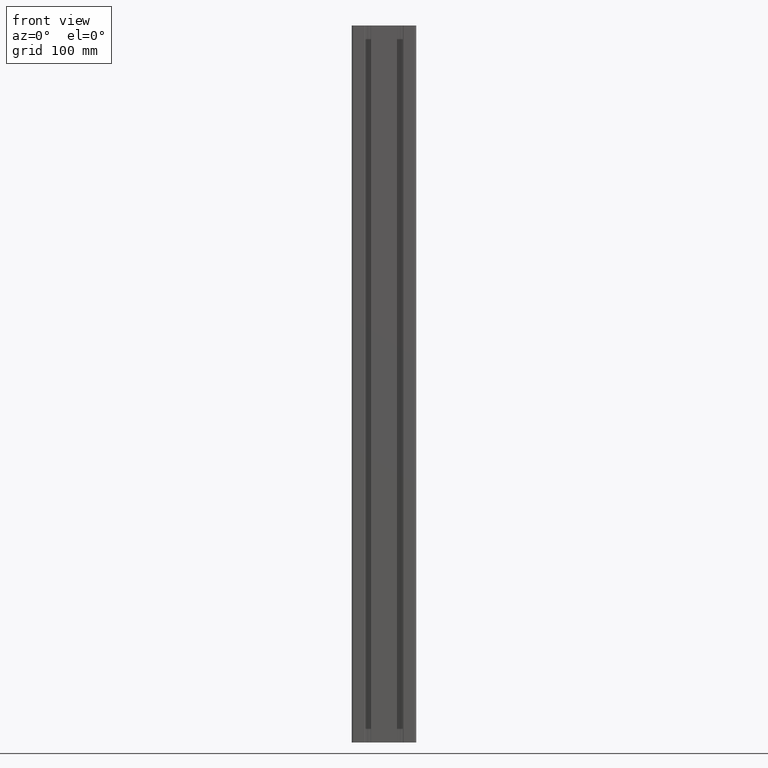
[diagram: clean part render]
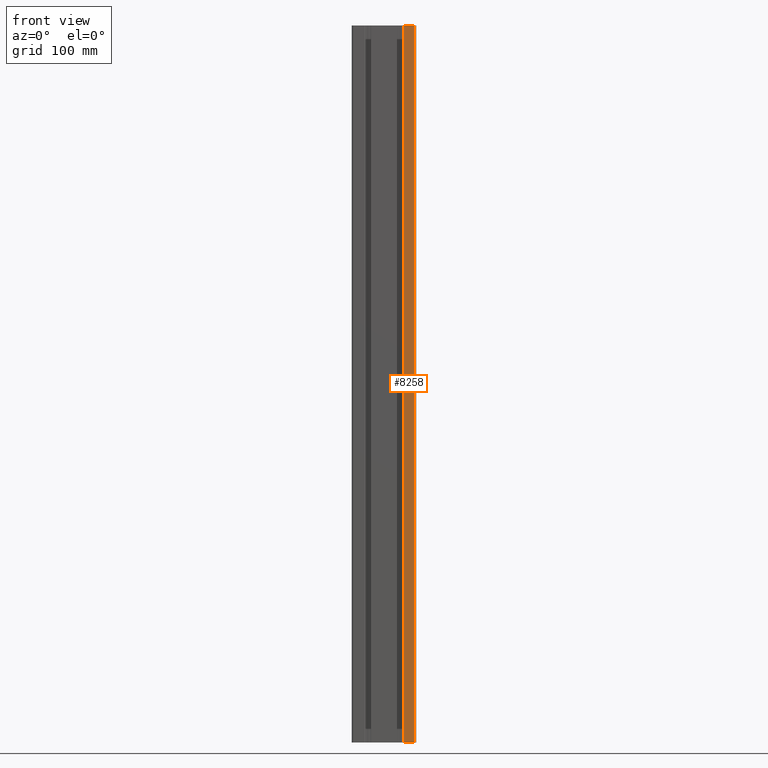
[diagram: same view with one face highlighted and labeled with its STEP entity id]
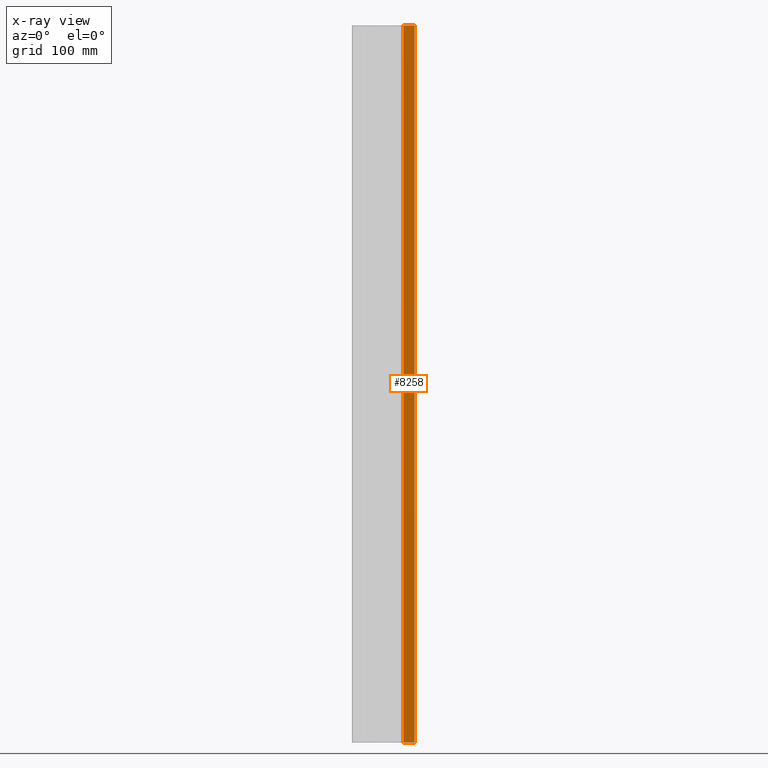
[diagram: x-ray of the same camera — body ghosted, the highlighted face saturated]
A machine part, front view. The second image highlights one B-rep face of the part: STEP entity #8258.
The next image is the same camera in x-ray: the body ghosted, the highlighted face saturated — about 0% of this face is hidden behind the body in this view.
In plain terms, the highlighted planar face has unit normal (0, -1, 0).
Its self-contained STEP definition (entity closure, byte-faithful):
#257=PLANE('',#9069);
#664=FACE_OUTER_BOUND('',#1074,.T.);
#1074=EDGE_LOOP('',(#6821,#6822,#6823,#6824));
#1938=LINE('',#13923,#2778);
#1939=LINE('',#13926,#2779);
#1940=LINE('',#13928,#2780);
#1941=LINE('',#13929,#2781);
#2778=VECTOR('',#11469,10.);
#2779=VECTOR('',#11472,10.);
#2780=VECTOR('',#11473,10.);
#2781=VECTOR('',#11474,10.);
#3979=VERTEX_POINT('',#13919);
#3980=VERTEX_POINT('',#13921);
#3981=VERTEX_POINT('',#13925);
#3982=VERTEX_POINT('',#13927);
#5196=EDGE_CURVE('',#3979,#3980,#1938,.T.);
#5197=EDGE_CURVE('',#3979,#3981,#1939,.T.);
#5198=EDGE_CURVE('',#3982,#3980,#1940,.T.);
#5199=EDGE_CURVE('',#3981,#3982,#1941,.T.);
#6821=ORIENTED_EDGE('',*,*,#5197,.F.);
#6822=ORIENTED_EDGE('',*,*,#5196,.T.);
#6823=ORIENTED_EDGE('',*,*,#5198,.F.);
#6824=ORIENTED_EDGE('',*,*,#5199,.F.);
#8258=ADVANCED_FACE('',(#664),#257,.T.);
#9069=AXIS2_PLACEMENT_3D('',#13924,#11470,#11471);
#11469=DIRECTION('',(0.,0.,1.));
#11470=DIRECTION('center_axis',(2.90466167224408E-13,-1.,0.));
#11471=DIRECTION('ref_axis',(1.,2.90466167224408E-13,0.));
#11472=DIRECTION('',(-1.,-2.90466167224408E-13,0.));
#11473=DIRECTION('',(1.,2.90466167224408E-13,0.));
#11474=DIRECTION('',(0.,0.,1.));
#13919=CARTESIAN_POINT('',(42.5000000000267,-89.9999999999875,0.));
#13921=CARTESIAN_POINT('',(42.5000000000267,-89.9999999999875,1000.));
#13923=CARTESIAN_POINT('',(42.5000000000267,-89.9999999999875,0.));
#13924=CARTESIAN_POINT('Origin',(27.1500000000268,-89.9999999999919,0.));
#13925=CARTESIAN_POINT('',(27.1500000000268,-89.9999999999919,0.));
#13926=CARTESIAN_POINT('',(42.5000000000267,-89.9999999999875,0.));
#13927=CARTESIAN_POINT('',(27.1500000000268,-89.9999999999919,1000.));
#13928=CARTESIAN_POINT('',(42.5000000000267,-89.9999999999875,1000.));
#13929=CARTESIAN_POINT('',(27.1500000000268,-89.9999999999919,0.));